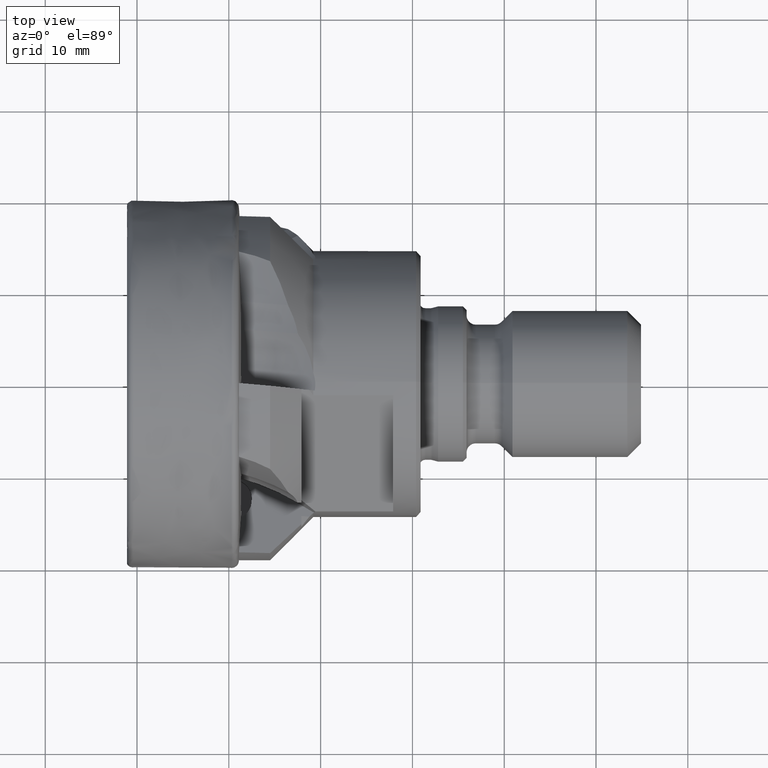
[diagram: clean part render]
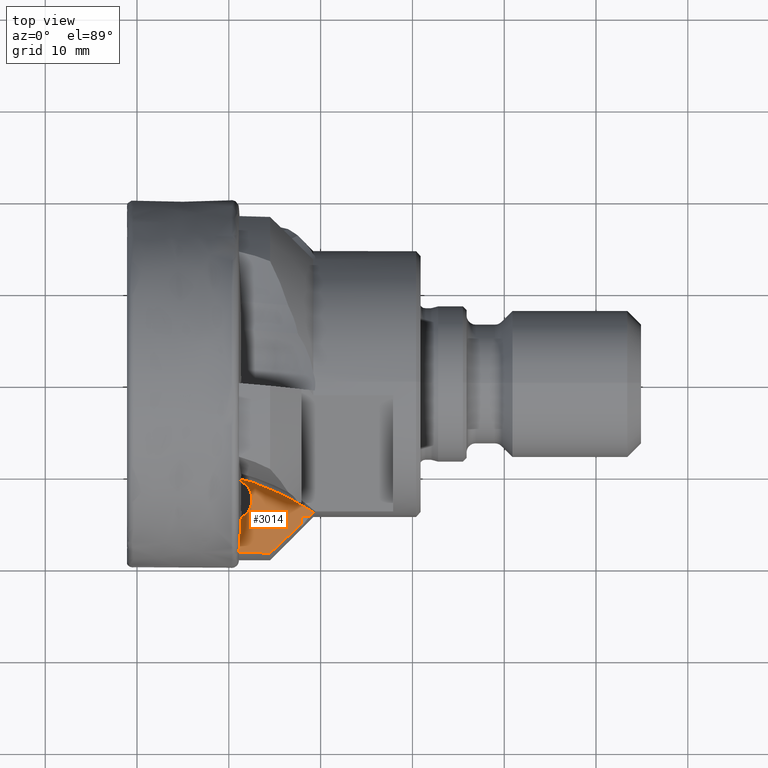
[diagram: same view with one face highlighted and labeled with its STEP entity id]
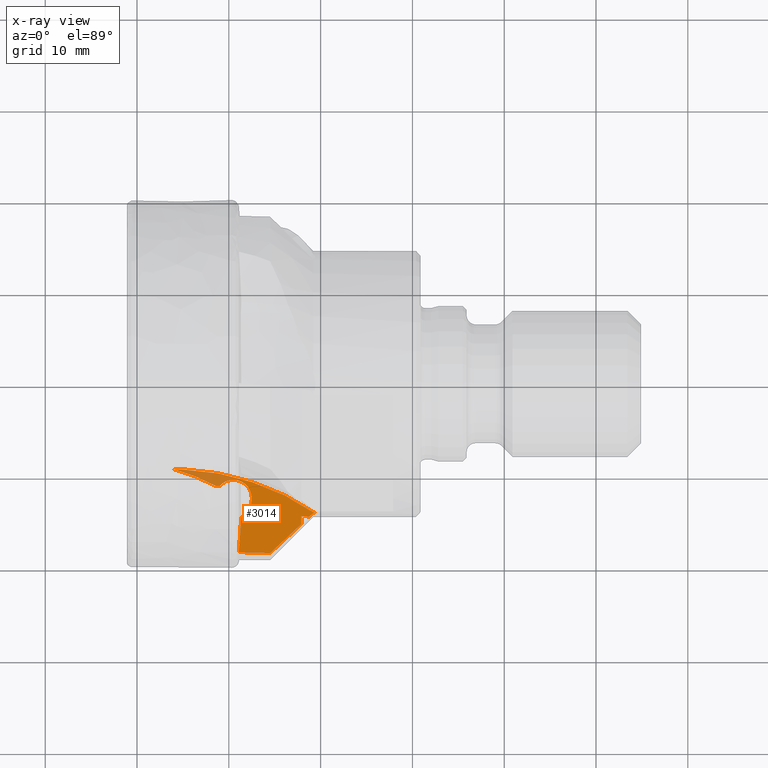
[diagram: x-ray of the same camera — body ghosted, the highlighted face saturated]
A machine part, top view. The second image highlights one B-rep face of the part: STEP entity #3014.
The next image is the same camera in x-ray: the body ghosted, the highlighted face saturated — about 12% of this face is hidden behind the body in this view.
In plain terms, the highlighted planar face has unit normal (0.0872, 0.2913, 0.9527).
Its self-contained STEP definition (entity closure, byte-faithful):
#9 = CARTESIAN_POINT ( 'NONE',  ( 11.09987914869350900, -18.42912015374486900, 5.385863938017255500 ) ) ;
#26 = VERTEX_POINT ( 'NONE', #2395 ) ;
#31 = CARTESIAN_POINT ( 'NONE',  ( 18.91577655046452100, -14.38015114514744200, 3.432923332311404800 ) ) ;
#52 = ORIENTED_EDGE ( 'NONE', *, *, #4554, .T. ) ;
#94 = B_SPLINE_CURVE_WITH_KNOTS ( 'NONE', 3,
 ( #1038, #3179, #1769, #4269 ),
 .UNSPECIFIED., .F., .F.,
 ( 4, 4 ),
 ( 2.837826928552942600E-007, 0.004828041012960030500 ),
 .UNSPECIFIED. ) ;
#113 = EDGE_CURVE ( 'NONE', #1954, #4576, #2482, .T. ) ;
#126 = ORIENTED_EDGE ( 'NONE', *, *, #3478, .F. ) ;
#157 = CARTESIAN_POINT ( 'NONE',  ( 23.78985759878269600, -14.91428763575431800, 3.150314217553969300 ) ) ;
#176 = ORIENTED_EDGE ( 'NONE', *, *, #4173, .T. ) ;
#193 = ORIENTED_EDGE ( 'NONE', *, *, #3957, .T. ) ;
#282 = VERTEX_POINT ( 'NONE', #4104 ) ;
#319 = VERTEX_POINT ( 'NONE', #1381 ) ;
#368 = LINE ( 'NONE', #2595, #2084 ) ;
#394 = CARTESIAN_POINT ( 'NONE',  ( 19.05790048231850500, -14.24685159949859200, 3.379167196589476500 ) ) ;
#398 = CARTESIAN_POINT ( 'NONE',  ( 17.90000000000000200, -14.44361479231631800, 3.545255626887958500 ) ) ;
#402 = AXIS2_PLACEMENT_3D ( 'NONE', #3977, #1824, #4318 ) ;
#491 = ORIENTED_EDGE ( 'NONE', *, *, #2952, .T. ) ;
#514 = CIRCLE ( 'NONE', #3796, 25.99990415222657300 ) ;
#531 = CARTESIAN_POINT ( 'NONE',  ( 8.977918880617991700, -11.20259140359685700, 3.370622405459119600 ) ) ;
#619 = EDGE_CURVE ( 'NONE', #2321, #643, #2016, .T. ) ;
#623 = CARTESIAN_POINT ( 'NONE',  ( 11.28596915242389900, -16.19736753852356900, 4.686524027613811100 ) ) ;
#643 = VERTEX_POINT ( 'NONE', #776 ) ;
#656 = VERTEX_POINT ( 'NONE', #4358 ) ;
#668 = EDGE_CURVE ( 'NONE', #1645, #319, #4497, .T. ) ;
#703 = CARTESIAN_POINT ( 'NONE',  ( 7.093796291163374500, -10.44809809556536400, 3.312321819737857400 ) ) ;
#776 = CARTESIAN_POINT ( 'NONE',  ( 12.49738582572153700, -12.60222457242122800, 3.476550641801388100 ) ) ;
#858 = CARTESIAN_POINT ( 'NONE',  ( 12.48203207116323400, -12.90222457242122900, 3.569674502503668900 ) ) ;
#869 = CARTESIAN_POINT ( 'NONE',  ( 11.09987914869350900, -18.42912015374486900, 5.385863938017255500 ) ) ;
#1038 = CARTESIAN_POINT ( 'NONE',  ( 14.50000000000000000, -18.51036675226337600, 5.099639467325369300 ) ) ;
#1062 = CARTESIAN_POINT ( 'NONE',  ( 5.547042784830154900, -9.825279896796683200, 3.263413748182665900 ) ) ;
#1092 = B_SPLINE_CURVE_WITH_KNOTS ( 'NONE', 3,
 ( #4245, #3172, #2833, #703, #3201, #1062, #3571, #1438 ),
 .UNSPECIFIED., .F., .F.,
 ( 4, 2, 2, 4 ),
 ( 0.008763163472764332100, 0.01002672568947170600, 0.01129028790617907800, 0.01381741233959382100 ),
 .UNSPECIFIED. ) ;
#1105 = EDGE_LOOP ( 'NONE', ( #2173, #4175, #52, #4512, #1448, #491, #193, #126, #2593, #1839, #176, #2045, #3734, #1951 ) ) ;
#1214 = DIRECTION ( 'NONE',  ( -0.08715574274765837400, -0.2912591421168330100, -0.9526657276502974400 ) ) ;
#1266 = CARTESIAN_POINT ( 'NONE',  ( 11.15304905648723900, -17.79147668593667900, 5.186052454628110400 ) ) ;
#1381 = CARTESIAN_POINT ( 'NONE',  ( 11.35567308641507400, -14.60036447485467400, 4.191894246416767400 ) ) ;
#1437 = CARTESIAN_POINT ( 'NONE',  ( 13.36681448156615000, -18.48402408350017000, 5.195256513033126700 ) ) ;
#1438 = CARTESIAN_POINT ( 'NONE',  ( 3.946055515482663100, -9.337906286488662400, 3.260876882449986500 ) ) ;
#1447 = CARTESIAN_POINT ( 'NONE',  ( 5.044657884303792800, -9.380899472946479600, 3.173514290914711400 ) ) ;
#1448 = ORIENTED_EDGE ( 'NONE', *, *, #2170, .T. ) ;
#1452 =( BOUNDED_CURVE ( )  B_SPLINE_CURVE ( 3, ( #3721, #4090, #1604, #4102 ),
 .UNSPECIFIED., .F., .T. ) 
 B_SPLINE_CURVE_WITH_KNOTS ( ( 4, 4 ),
 ( 1.636104446872749900, 1.637084298608427700 ),
 .UNSPECIFIED. ) 
 CURVE ( )  GEOMETRIC_REPRESENTATION_ITEM ( )  RATIONAL_B_SPLINE_CURVE ( ( 1.000000000000000000, 0.9999999199908830000, 0.9999999199908830000, 1.000000000000000000 ) ) 
 REPRESENTATION_ITEM ( '' )  );
#1577 = VECTOR ( 'NONE', #2955, 1000.000000000000100 ) ;
#1588 = CARTESIAN_POINT ( 'NONE',  ( 11.35567308641507400, -14.60036447485467400, 4.191894246416767400 ) ) ;
#1604 = CARTESIAN_POINT ( 'NONE',  ( 19.30803178098373300, -14.11569810144576000, 3.316185992682750200 ) ) ;
#1637 = LINE ( 'NONE', #1447, #1965 ) ;
#1645 = VERTEX_POINT ( 'NONE', #2286 ) ;
#1663 = DIRECTION ( 'NONE',  ( 0.0000000000000000000, 0.9563047559630363200, -0.2923717047227338800 ) ) ;
#1681 = VERTEX_POINT ( 'NONE', #3380 ) ;
#1769 = CARTESIAN_POINT ( 'NONE',  ( 16.76765141651624100, -16.39245189942516800, 4.244669163499772000 ) ) ;
#1784 = EDGE_CURVE ( 'NONE', #643, #4138, #3140, .T. ) ;
#1824 = DIRECTION ( 'NONE',  ( 0.08715574274765838800, 0.2912591421168328500, 0.9526657276502973300 ) ) ;
#1839 = ORIENTED_EDGE ( 'NONE', *, *, #4059, .F. ) ;
#1909 = CARTESIAN_POINT ( 'NONE',  ( 11.20621794687469700, -17.15383311409264200, 4.986241032510629400 ) ) ;
#1951 = ORIENTED_EDGE ( 'NONE', *, *, #4247, .T. ) ;
#1954 = VERTEX_POINT ( 'NONE', #3890 ) ;
#1965 = VECTOR ( 'NONE', #3579, 999.9999999999998900 ) ;
#1990 = CARTESIAN_POINT ( 'NONE',  ( 10.47325528511086300, -9.448307275440884100, 2.697481316644311000 ) ) ;
#2016 =( BOUNDED_CURVE ( )  B_SPLINE_CURVE ( 3, ( #531, #1990, #3320, #2785 ),
 .UNSPECIFIED., .F., .T. ) 
 B_SPLINE_CURVE_WITH_KNOTS ( ( 4, 4 ),
 ( 5.127512264379687300, 7.614358826260448700 ),
 .UNSPECIFIED. ) 
 CURVE ( )  GEOMETRIC_REPRESENTATION_ITEM ( )  RATIONAL_B_SPLINE_CURVE ( ( 1.000000000000000000, 0.5477044688702651400, 0.5477044688702651400, 1.000000000000000000 ) ) 
 REPRESENTATION_ITEM ( '' )  );
#2045 = ORIENTED_EDGE ( 'NONE', *, *, #619, .T. ) ;
#2055 = VERTEX_POINT ( 'NONE', #2224 ) ;
#2084 = VECTOR ( 'NONE', #3312, 999.9999999999998900 ) ;
#2161 = CARTESIAN_POINT ( 'NONE',  ( 18.77363024593033800, -14.51342870972757200, 3.486674794537135500 ) ) ;
#2170 = EDGE_CURVE ( 'NONE', #4576, #4300, #2629, .T. ) ;
#2173 = ORIENTED_EDGE ( 'NONE', *, *, #668, .F. ) ;
#2199 = CARTESIAN_POINT ( 'NONE',  ( 12.48203207116323400, -12.90222457242122900, 3.569674502503668900 ) ) ;
#2209 = CARTESIAN_POINT ( 'NONE',  ( 11.36218566694419300, -15.24074010112094500, 4.387080911947657900 ) ) ;
#2224 = CARTESIAN_POINT ( 'NONE',  ( 19.36204505260294400, -14.11677971906107300, 3.311575208794991900 ) ) ;
#2286 = CARTESIAN_POINT ( 'NONE',  ( 11.09987914869350900, -18.42912015374486900, 5.385863938017255500 ) ) ;
#2321 = VERTEX_POINT ( 'NONE', #2699 ) ;
#2395 = CARTESIAN_POINT ( 'NONE',  ( 8.593843813832464200, -11.18756084165007200, 3.401164659990408200 ) ) ;
#2482 = LINE ( 'NONE', #3549, #2587 ) ;
#2512 = PLANE ( 'NONE',  #402 ) ;
#2522 = EDGE_CURVE ( 'NONE', #282, #1681, #1637, .T. ) ;
#2587 = VECTOR ( 'NONE', #1663, 1000.000000000000000 ) ;
#2593 = ORIENTED_EDGE ( 'NONE', *, *, #2522, .T. ) ;
#2595 = CARTESIAN_POINT ( 'NONE',  ( 5.020130502927989000, -11.04770557910590300, 3.685351973896361200 ) ) ;
#2629 = LINE ( 'NONE', #157, #1577 ) ;
#2670 = CARTESIAN_POINT ( 'NONE',  ( 18.77363024593033800, -14.51342870972757200, 3.486674794537135500 ) ) ;
#2699 = CARTESIAN_POINT ( 'NONE',  ( 8.977918880617991700, -11.20259140359685700, 3.370622405459119600 ) ) ;
#2785 = CARTESIAN_POINT ( 'NONE',  ( 12.49738582572153700, -12.60222457242122800, 3.476550641801388100 ) ) ;
#2833 = CARTESIAN_POINT ( 'NONE',  ( 7.851797578833775000, -10.79790621948313700, 3.349922257968740900 ) ) ;
#2853 = CARTESIAN_POINT ( 'NONE',  ( 19.19999999999998200, -14.11352809003807500, 3.325405967954317100 ) ) ;
#2952 = EDGE_CURVE ( 'NONE', #4300, #656, #4205, .T. ) ;
#2955 = DIRECTION ( 'NONE',  ( 0.9946028594279410200, -0.07948113313219500000, -0.06669258949677754600 ) ) ;
#2991 = CARTESIAN_POINT ( 'NONE',  ( 12.44375477073031500, -13.65013219894142400, 3.801834654604471500 ) ) ;
#3014 = ADVANCED_FACE ( 'NONE', ( #3812 ), #2512, .T. ) ;
#3140 = LINE ( 'NONE', #3423, #4321 ) ;
#3161 = VERTEX_POINT ( 'NONE', #4147 ) ;
#3172 = CARTESIAN_POINT ( 'NONE',  ( 8.226207806344781700, -10.98427448778393300, 3.372647396329122600 ) ) ;
#3179 = CARTESIAN_POINT ( 'NONE',  ( 15.63414353110450100, -17.45172338337987500, 4.672221256040647800 ) ) ;
#3183 = CARTESIAN_POINT ( 'NONE',  ( 12.23341818291114300, -18.45694134201355000, 5.290666579278866500 ) ) ;
#3201 = CARTESIAN_POINT ( 'NONE',  ( 6.710112606820641400, -10.28488956161402600, 3.297525715830004400 ) ) ;
#3312 = DIRECTION ( 'NONE',  ( 0.9960953959093015200, -0.03898163366609890000, -0.07921107551986766900 ) ) ;
#3320 = CARTESIAN_POINT ( 'NONE',  ( 12.61520539697992200, -10.30012502775985400, 2.761949317401947400 ) ) ;
#3342 = CARTESIAN_POINT ( 'NONE',  ( 4.693019971817706800, -34.23344536075504900, 10.80387008850635600 ) ) ;
#3380 = CARTESIAN_POINT ( 'NONE',  ( 3.946055515482663100, -9.337906286488662400, 3.260876882449986500 ) ) ;
#3423 = CARTESIAN_POINT ( 'NONE',  ( 12.63402038633856100, -9.932495287023860100, 2.647832314847565500 ) ) ;
#3478 = EDGE_CURVE ( 'NONE', #282, #2055, #514, .T. ) ;
#3489 = CARTESIAN_POINT ( 'NONE',  ( 11.35567308641507400, -14.60036447485467400, 4.191894246416767400 ) ) ;
#3549 = CARTESIAN_POINT ( 'NONE',  ( 17.90000000000000200, 5.757514321076055100, -2.630849343183805400 ) ) ;
#3571 = CARTESIAN_POINT ( 'NONE',  ( 4.756551640032261800, -9.556612654189688500, 3.253592939619121900 ) ) ;
#3579 = DIRECTION ( 'NONE',  ( -0.9960953959093015200, 0.03898163366609915000, 0.07921107551986762700 ) ) ;
#3714 = DIRECTION ( 'NONE',  ( 0.0000000000000000000, 0.9563047559630363200, -0.2923717047227340500 ) ) ;
#3721 = CARTESIAN_POINT ( 'NONE',  ( 19.19999999999998200, -14.11352809003807500, 3.325405967954317100 ) ) ;
#3722 = CARTESIAN_POINT ( 'NONE',  ( 12.02980739933267000, -14.27421435959695900, 4.030506180211741500 ) ) ;
#3730 =( BOUNDED_CURVE ( )  B_SPLINE_CURVE ( 3, ( #858, #2991, #3722, #1588 ),
 .UNSPECIFIED., .F., .T. ) 
 B_SPLINE_CURVE_WITH_KNOTS ( ( 4, 4 ),
 ( 1.331173519080862200, 2.400226728760936500 ),
 .UNSPECIFIED. ) 
 CURVE ( )  GEOMETRIC_REPRESENTATION_ITEM ( )  RATIONAL_B_SPLINE_CURVE ( ( 1.000000000000000000, 0.9070065927678518900, 0.9070065927678518900, 1.000000000000000000 ) ) 
 REPRESENTATION_ITEM ( '' )  );
#3734 = ORIENTED_EDGE ( 'NONE', *, *, #1784, .T. ) ;
#3774 = EDGE_CURVE ( 'NONE', #1645, #3161, #4282, .T. ) ;
#3796 = AXIS2_PLACEMENT_3D ( 'NONE', #3342, #1214, #3714 ) ;
#3812 = FACE_OUTER_BOUND ( 'NONE', #1105, .T. ) ;
#3890 = CARTESIAN_POINT ( 'NONE',  ( 17.90000000000000200, -15.33204056702258800, 3.816874644414345800 ) ) ;
#3939 = CARTESIAN_POINT ( 'NONE',  ( 14.50000000000000000, -18.51036675226337600, 5.099639467325369300 ) ) ;
#3957 = EDGE_CURVE ( 'NONE', #656, #2055, #1452, .T. ) ;
#3977 = CARTESIAN_POINT ( 'NONE',  ( 5.044657884303792800, -9.380899472946479600, 3.173514290914711400 ) ) ;
#4059 = EDGE_CURVE ( 'NONE', #26, #1681, #1092, .T. ) ;
#4086 = CARTESIAN_POINT ( 'NONE',  ( 11.37744591270988600, -14.92139988830472100, 4.288052709563212200 ) ) ;
#4090 = CARTESIAN_POINT ( 'NONE',  ( 19.25401675912773000, -14.11461422501803800, 3.320796246104718000 ) ) ;
#4102 = CARTESIAN_POINT ( 'NONE',  ( 19.36204505260294400, -14.11677971906107300, 3.311575208794991900 ) ) ;
#4104 = CARTESIAN_POINT ( 'NONE',  ( 5.044657884303792800, -9.380899472946479600, 3.173514290914711400 ) ) ;
#4138 = VERTEX_POINT ( 'NONE', #2199 ) ;
#4146 = DIRECTION ( 'NONE',  ( -0.04882017615173703900, -0.9539069281005251300, 0.2961049863179156000 ) ) ;
#4147 = CARTESIAN_POINT ( 'NONE',  ( 14.50000000000000000, -18.51036675226337600, 5.099639467325369300 ) ) ;
#4173 = EDGE_CURVE ( 'NONE', #26, #2321, #368, .T. ) ;
#4175 = ORIENTED_EDGE ( 'NONE', *, *, #3774, .T. ) ;
#4205 = B_SPLINE_CURVE_WITH_KNOTS ( 'NONE', 3,
 ( #2161, #31, #394, #2853 ),
 .UNSPECIFIED., .F., .F.,
 ( 4, 4 ),
 ( 0.006069969412762893000, 0.006676367569759148600 ),
 .UNSPECIFIED. ) ;
#4245 = CARTESIAN_POINT ( 'NONE',  ( 8.593843813832464200, -11.18756084165007200, 3.401164659990408200 ) ) ;
#4247 = EDGE_CURVE ( 'NONE', #4138, #319, #3730, .T. ) ;
#4269 = CARTESIAN_POINT ( 'NONE',  ( 17.90000000000000200, -15.33204056702258800, 3.816874644414345800 ) ) ;
#4282 =( BOUNDED_CURVE ( )  B_SPLINE_CURVE ( 3, ( #9, #3183, #1437, #3939 ),
 .UNSPECIFIED., .F., .T. ) 
 B_SPLINE_CURVE_WITH_KNOTS ( ( 4, 4 ),
 ( 1.583172995741302100, 1.598669623695982500 ),
 .UNSPECIFIED. ) 
 CURVE ( )  GEOMETRIC_REPRESENTATION_ITEM ( )  RATIONAL_B_SPLINE_CURVE ( ( 1.000000000000000000, 0.9999799879769570900, 0.9999799879769570900, 1.000000000000000000 ) ) 
 REPRESENTATION_ITEM ( '' )  );
#4300 = VERTEX_POINT ( 'NONE', #2670 ) ;
#4318 = DIRECTION ( 'NONE',  ( 0.0000000000000000000, -0.9563047559630363200, 0.2923717047227338800 ) ) ;
#4321 = VECTOR ( 'NONE', #4146, 1000.000000000000100 ) ;
#4358 = CARTESIAN_POINT ( 'NONE',  ( 19.19999999999998200, -14.11352809003807500, 3.325405967954317100 ) ) ;
#4497 = B_SPLINE_CURVE_WITH_KNOTS ( 'NONE', 3,
 ( #869, #1266, #1909, #623, #4543, #2209, #4086, #3489 ),
 .UNSPECIFIED., .F., .F.,
 ( 4, 2, 2, 4 ),
 ( 5.658429974719725000E-005, 0.002067571057596847200, 0.003073064436521676800, 0.004078557815446510700 ),
 .UNSPECIFIED. ) ;
#4512 = ORIENTED_EDGE ( 'NONE', *, *, #113, .T. ) ;
#4543 = CARTESIAN_POINT ( 'NONE',  ( 11.31441245881161700, -15.87863077817220500, 4.586474251381655000 ) ) ;
#4554 = EDGE_CURVE ( 'NONE', #3161, #1954, #94, .T. ) ;
#4576 = VERTEX_POINT ( 'NONE', #398 ) ;